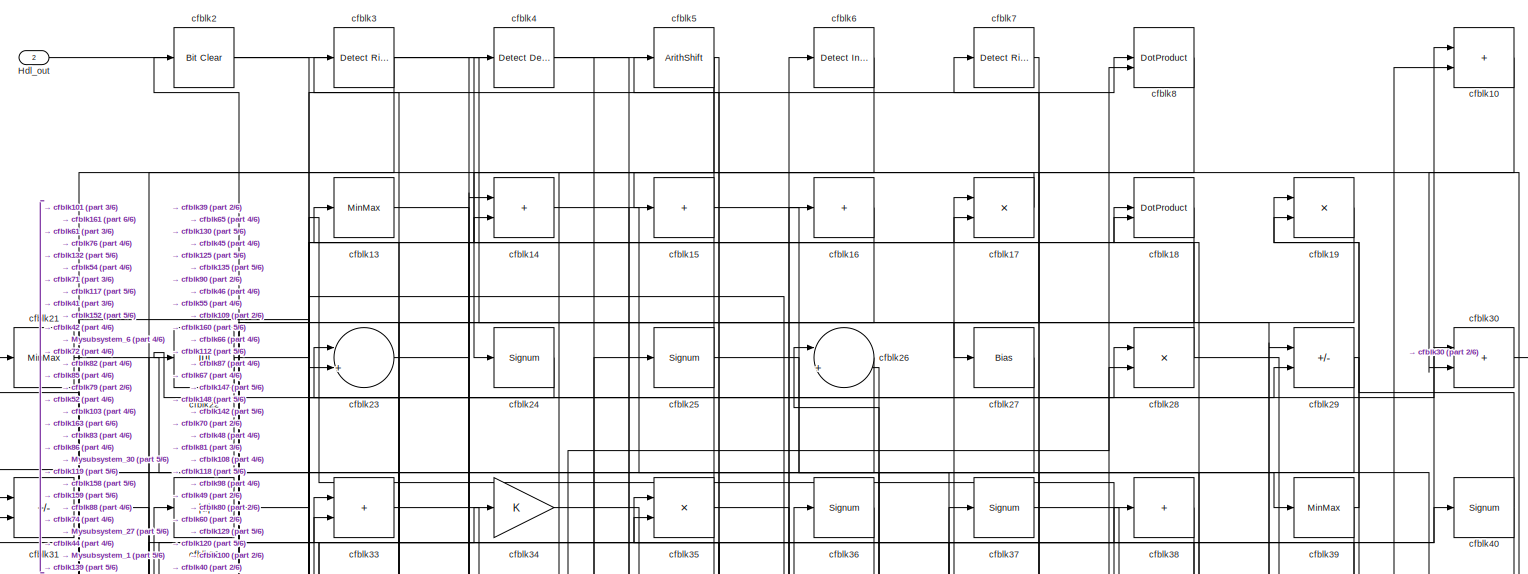
[diagram: root canvas - part 1/6, full width, top band]
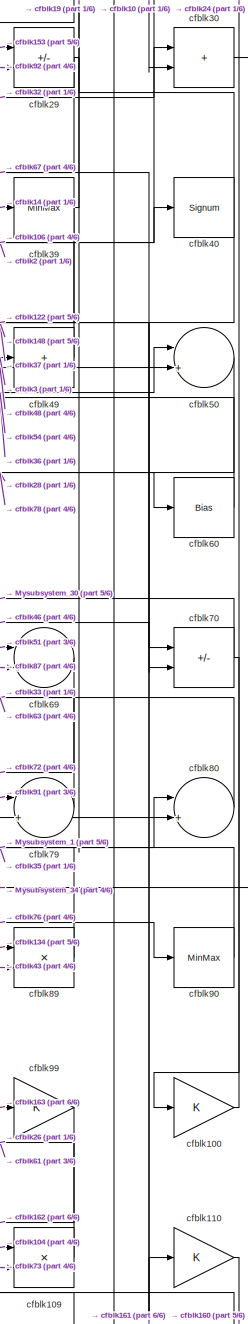
[diagram: root canvas - part 2/6, middle right region]
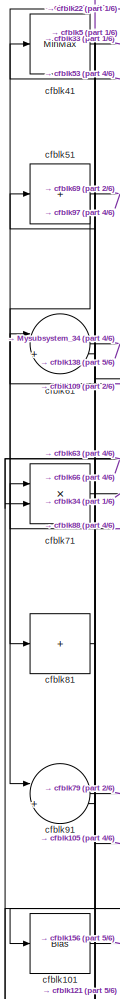
[diagram: root canvas - part 3/6, middle left region]
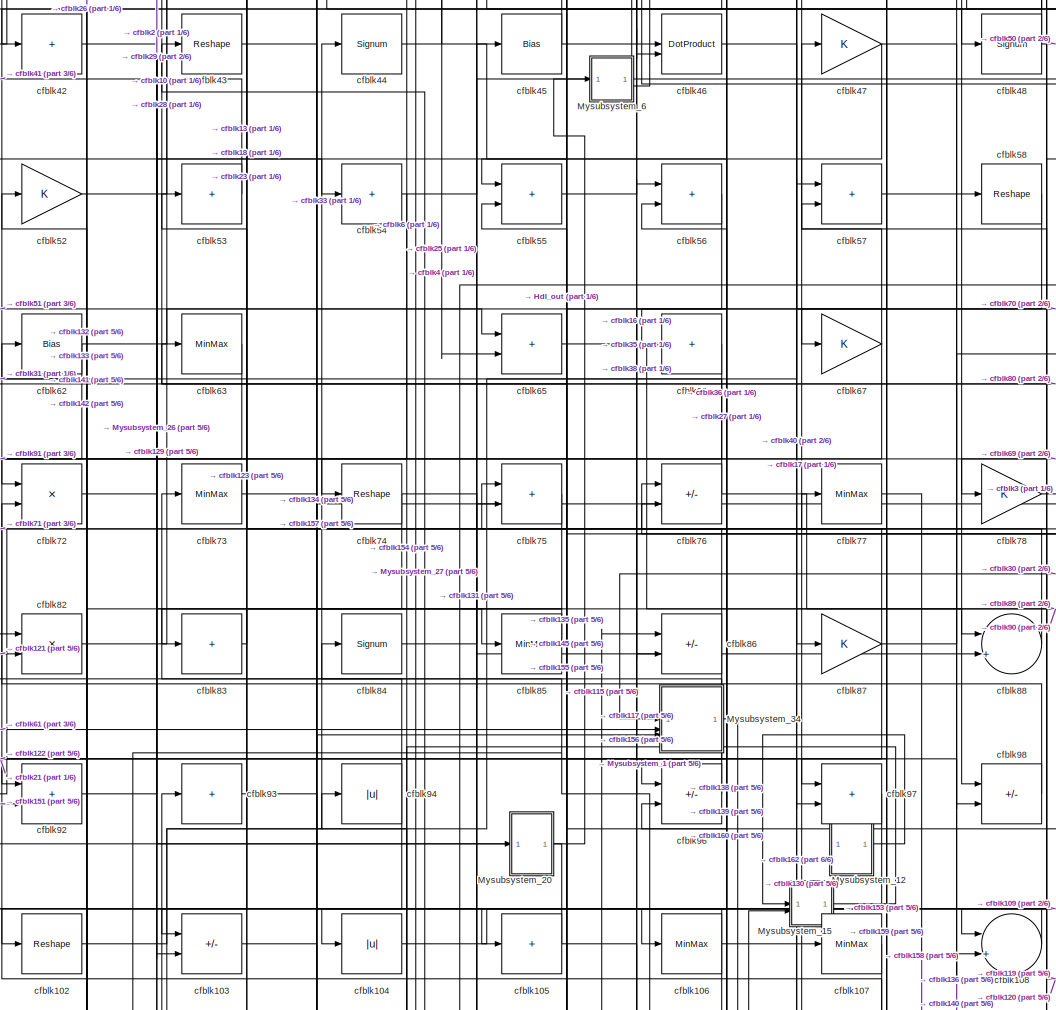
[diagram: root canvas - part 4/6, central region]
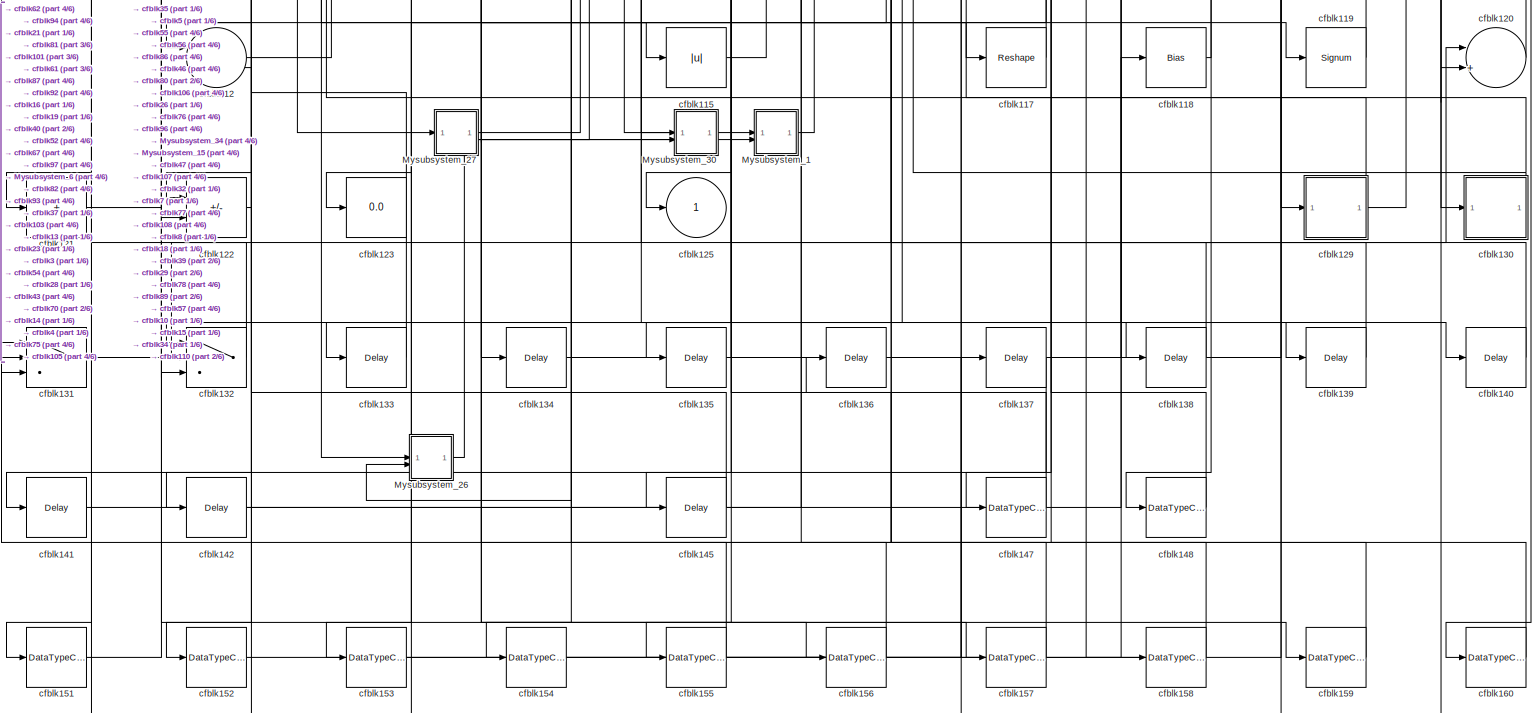
[diagram: root canvas - part 5/6, full width, bottom band]
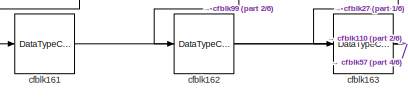
[diagram: root canvas - part 6/6, bottom left region]
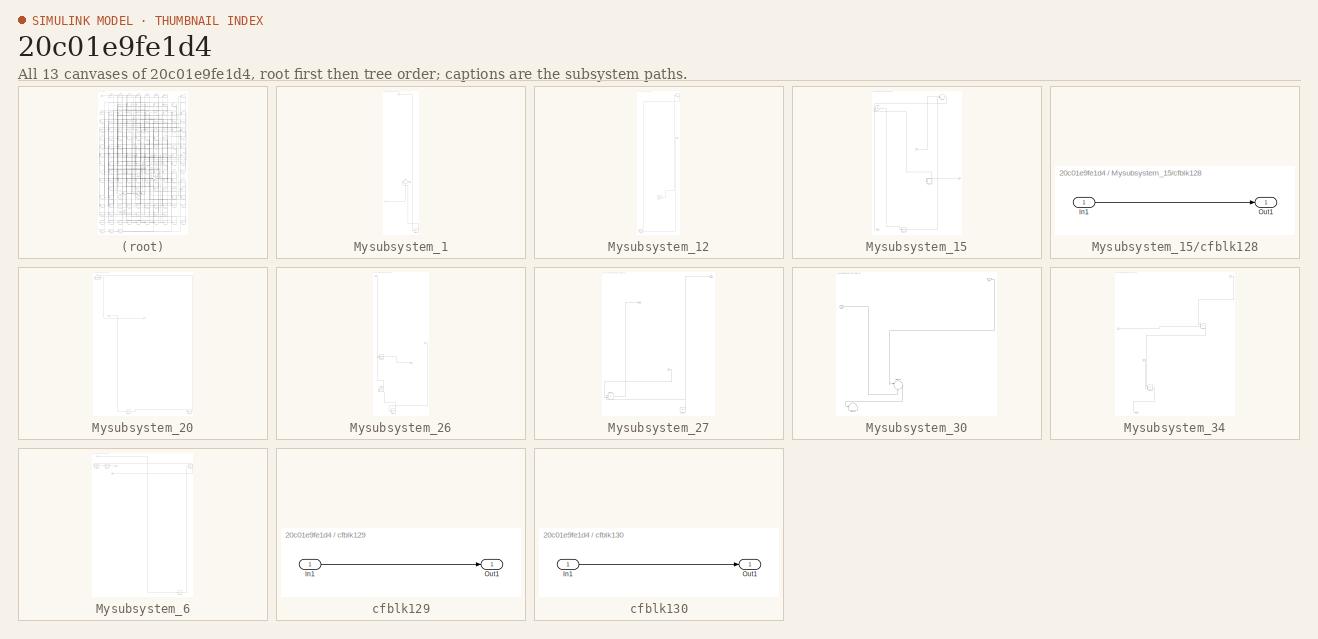
[diagram: thumbnail index - all 13 canvases of the model, root first then tree order]
MODEL slx_20c01e9fe1d4
KIND model
CONFIG AbsTol = auto
CONFIG EnableMultiTasking = off
CONFIG FixedStep = auto
CONFIG MaxStep = auto
CONFIG MinStep = auto
CONFIG RelTol = 1e-3
CONFIG SampleTimeConstraint = Unconstrained
CONFIG SolverName = VariableStepAuto
CONFIG StartTime = 0.0
CONFIG StopTime = 10.0
BLOCK [Outport] Hdl_out
  OutDataTypeStr = uint8
  Port = 2
BLOCK [SubSystem] Mysubsystem_1
  RTWFcnName = Mysubsystem_1
  RTWFcnNameOpts = User specified
  RTWFileNameOpts = Use function name
  RTWSystemCode = Reusable function
  TreatAsAtomicUnit = on
BLOCK [Inport] Mysubsystem_1/In1
BLOCK [Inport] Mysubsystem_1/In2
  Port = 2
BLOCK [Outport] Mysubsystem_1/Out1
BLOCK [Delay] Mysubsystem_1/cfblk146
  InputPortMap = u0
  SampleTime = 1
BLOCK [Sum] Mysubsystem_1/cfblk95
  Inputs = |++
BLOCK [SubSystem] Mysubsystem_12
  RTWFcnName = Mysubsystem_12
  RTWFcnNameOpts = User specified
  RTWFileNameOpts = Use function name
  RTWSystemCode = Reusable function
  TreatAsAtomicUnit = on
BLOCK [Outport] Mysubsystem_12/Out1
BLOCK [Reference] Mysubsystem_12/cfblk127  REF=hdlsllib/Sources/Counter
Free-Running
  SourceBlock = hdlsllib/Sources/Counter\nFree-Running
  SourceType = Counter Free-Running
BLOCK [DataTypeConversion] Mysubsystem_12/cfblk165
  OutDataTypeStr = uint8
  RndMeth = Floor
  SaturateOnIntegerOverflow = off
BLOCK [Abs] Mysubsystem_12/cfblk9
  SaturateOnIntegerOverflow = off
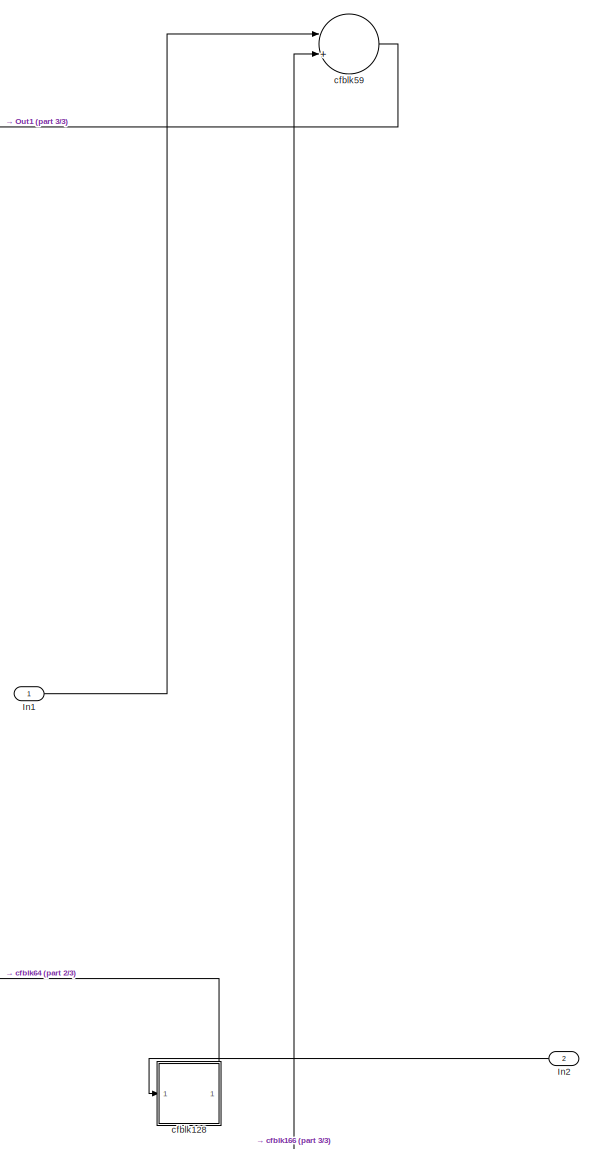
[diagram: Mysubsystem_15 - part 1/3, middle right region]
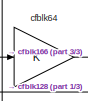
[diagram: Mysubsystem_15 - part 2/3, top left region]
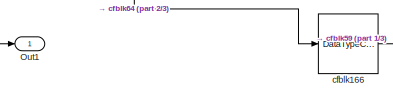
[diagram: Mysubsystem_15 - part 3/3, bottom left region]
BLOCK [SubSystem] Mysubsystem_15
  RTWFcnName = Mysubsystem_15
  RTWFcnNameOpts = User specified
  RTWFileNameOpts = Use function name
  RTWSystemCode = Reusable function
  TreatAsAtomicUnit = on
BLOCK [Inport] Mysubsystem_15/In1
BLOCK [Inport] Mysubsystem_15/In2
  Port = 2
BLOCK [Outport] Mysubsystem_15/Out1
BLOCK [SubSystem] Mysubsystem_15/cfblk128
  LibrarySourceBlock = hdlsllib/Ports &\nSubsystems/Subsystem
BLOCK [Inport] Mysubsystem_15/cfblk128/In1
BLOCK [Outport] Mysubsystem_15/cfblk128/Out1
BLOCK [DataTypeConversion] Mysubsystem_15/cfblk166
  OutDataTypeStr = uint8
  RndMeth = Floor
  SaturateOnIntegerOverflow = off
BLOCK [Sum] Mysubsystem_15/cfblk59
  Inputs = |++
BLOCK [Gain] Mysubsystem_15/cfblk64
BLOCK [SubSystem] Mysubsystem_20
  RTWFcnName = Mysubsystem_20
  RTWFcnNameOpts = User specified
  RTWFileNameOpts = Use function name
  RTWSystemCode = Reusable function
  TreatAsAtomicUnit = on
BLOCK [Inport] Mysubsystem_20/In1
BLOCK [Reference] Mysubsystem_20/cfblk1  REF=hdlsllib/Logic and Bit
Operations/Compare
To Zero
  SourceBlock = hdlsllib/Logic and Bit\nOperations/Compare\nTo Zero
  SourceType = Compare To Zero
BLOCK [Delay] Mysubsystem_20/cfblk144
  InputPortMap = u0
  SampleTime = 1
BLOCK [DataTypeConversion] Mysubsystem_20/cfblk150
  OutDataTypeStr = uint8
  RndMeth = Floor
  SaturateOnIntegerOverflow = off
BLOCK [Outport] Mysubsystem_20/y
BLOCK [SubSystem] Mysubsystem_26
  RTWFcnName = Mysubsystem_26
  RTWFcnNameOpts = User specified
  RTWFileNameOpts = Use function name
  RTWSystemCode = Reusable function
  TreatAsAtomicUnit = on
BLOCK [Inport] Mysubsystem_26/In1
BLOCK [Inport] Mysubsystem_26/In2
  Port = 2
BLOCK [Outport] Mysubsystem_26/Out1
BLOCK [DotProduct] Mysubsystem_26/cfblk113
  OutDataTypeStr = Inherit: Inherit via internal rule
BLOCK [Delay] Mysubsystem_26/cfblk143
  InputPortMap = u0
  SampleTime = 1
BLOCK [DataTypeConversion] Mysubsystem_26/cfblk164
  OutDataTypeStr = uint8
  RndMeth = Floor
  SaturateOnIntegerOverflow = off
BLOCK [SubSystem] Mysubsystem_27
  RTWFcnName = Mysubsystem_27
  RTWFcnNameOpts = User specified
  RTWFileNameOpts = Use function name
  RTWSystemCode = Reusable function
  TreatAsAtomicUnit = on
BLOCK [Inport] Mysubsystem_27/In1
BLOCK [Outport] Mysubsystem_27/Out1
BLOCK [Outport] Mysubsystem_27/Out2
  Port = 2
BLOCK [Product] Mysubsystem_27/cfblk111
  Inputs = */
  RndMeth = Zero
  SaturateOnIntegerOverflow = on
BLOCK [Ground] Mysubsystem_27/cfblk126
BLOCK [SubSystem] Mysubsystem_30
  RTWFcnName = Mysubsystem_30
  RTWFcnNameOpts = User specified
  RTWFileNameOpts = Use function name
  RTWSystemCode = Reusable function
  TreatAsAtomicUnit = on
BLOCK [Inport] Mysubsystem_30/In1
BLOCK [Inport] Mysubsystem_30/In2
  Port = 2
BLOCK [Sum] Mysubsystem_30/cfblk116
  Inputs = |++
BLOCK [Terminator] Mysubsystem_30/cfblk124
BLOCK [SubSystem] Mysubsystem_34
  RTWFcnName = Mysubsystem_34
  RTWFcnNameOpts = User specified
  RTWFileNameOpts = Use function name
  RTWSystemCode = Reusable function
  TreatAsAtomicUnit = on
BLOCK [Inport] Mysubsystem_34/In1
BLOCK [Inport] Mysubsystem_34/In2
  Port = 2
BLOCK [Inport] Mysubsystem_34/In3
  Port = 3
BLOCK [Outport] Mysubsystem_34/Out1
BLOCK [Sum] Mysubsystem_34/cfblk114
  IconShape = rectangular
  Inputs = +-
BLOCK [Sum] Mysubsystem_34/cfblk68
  IconShape = rectangular
  Inputs = +-
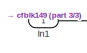
[diagram: Mysubsystem_6 - part 1/3, top left region]
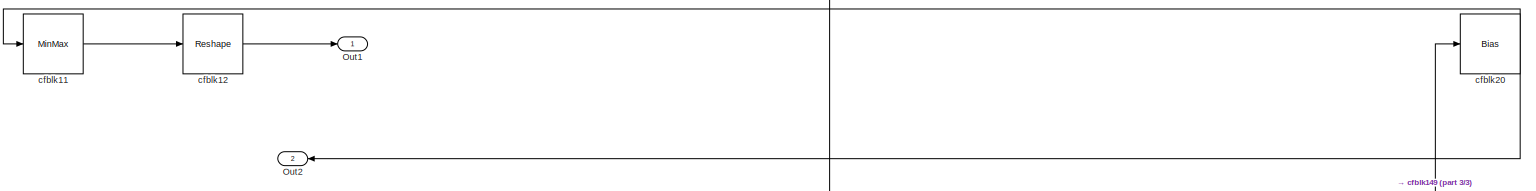
[diagram: Mysubsystem_6 - part 2/3, full width, top band]
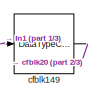
[diagram: Mysubsystem_6 - part 3/3, bottom right region]
BLOCK [SubSystem] Mysubsystem_6
  RTWFcnName = Mysubsystem_6
  RTWFcnNameOpts = User specified
  RTWFileNameOpts = Use function name
  RTWSystemCode = Reusable function
  TreatAsAtomicUnit = on
BLOCK [Inport] Mysubsystem_6/In1
BLOCK [Outport] Mysubsystem_6/Out1
BLOCK [Outport] Mysubsystem_6/Out2
  Port = 2
BLOCK [MinMax] Mysubsystem_6/cfblk11
BLOCK [Reshape] Mysubsystem_6/cfblk12
BLOCK [DataTypeConversion] Mysubsystem_6/cfblk149
  OutDataTypeStr = uint8
  RndMeth = Floor
  SaturateOnIntegerOverflow = off
BLOCK [Bias] Mysubsystem_6/cfblk20
  Bias = 0.0
  SaturateOnIntegerOverflow = off
BLOCK [Sum] cfblk10
  IconShape = rectangular
  OutDataTypeStr = uint8
BLOCK [Gain] cfblk100
  OutDataTypeStr = uint8
BLOCK [Bias] cfblk101
  Bias = 0.0
  SaturateOnIntegerOverflow = off
BLOCK [Reshape] cfblk102
BLOCK [Sum] cfblk103
  IconShape = rectangular
  Inputs = +-
  OutDataTypeStr = uint8
BLOCK [Abs] cfblk104
  OutDataTypeStr = uint8
  SaturateOnIntegerOverflow = off
BLOCK [Sum] cfblk105
  IconShape = rectangular
  Inputs = +
  OutDataTypeStr = uint8
BLOCK [MinMax] cfblk106
  OutDataTypeStr = uint8
BLOCK [MinMax] cfblk107
  OutDataTypeStr = uint8
BLOCK [Sum] cfblk108
  Inputs = |++
  OutDataTypeStr = uint8
BLOCK [Product] cfblk109
  Inputs = */
  OutDataTypeStr = uint8
  RndMeth = Zero
  SaturateOnIntegerOverflow = on
BLOCK [Gain] cfblk110
  OutDataTypeStr = uint8
BLOCK [Sum] cfblk112
  Inputs = |++
  OutDataTypeStr = uint8
BLOCK [Abs] cfblk115
  OutDataTypeStr = uint8
  SaturateOnIntegerOverflow = off
BLOCK [Reshape] cfblk117
BLOCK [Bias] cfblk118
  Bias = 0.0
  SaturateOnIntegerOverflow = off
BLOCK [Signum] cfblk119
BLOCK [Sum] cfblk120
  Inputs = |++
  OutDataTypeStr = uint8
BLOCK [Sum] cfblk121
  IconShape = rectangular
  Inputs = +
  OutDataTypeStr = uint8
BLOCK [Sum] cfblk122
  IconShape = rectangular
  Inputs = +-
  OutDataTypeStr = uint8
BLOCK [Display] cfblk123
  Decimation = 1
BLOCK [Outport] cfblk125
  OutDataTypeStr = uint8
  VectorParamsAs1DForOutWhenUnconnected = off
BLOCK [SubSystem] cfblk129
  LibrarySourceBlock = hdlsllib/Ports &\nSubsystems/Subsystem
BLOCK [Inport] cfblk129/In1
BLOCK [Outport] cfblk129/Out1
BLOCK [MinMax] cfblk13
  OutDataTypeStr = uint8
BLOCK [SubSystem] cfblk130
  LibrarySourceBlock = hdlsllib/Ports &\nSubsystems/Subsystem
BLOCK [Inport] cfblk130/In1
BLOCK [Outport] cfblk130/Out1
BLOCK [Switch] cfblk131
  InputSameDT = off
  OutDataTypeStr = uint8
  SaturateOnIntegerOverflow = off
BLOCK [Switch] cfblk132
  InputSameDT = off
  OutDataTypeStr = uint8
  SaturateOnIntegerOverflow = off
BLOCK [Delay] cfblk133
  InputPortMap = u0
  SampleTime = 1
BLOCK [Delay] cfblk134
  InputPortMap = u0
  SampleTime = 1
BLOCK [Delay] cfblk135
  InputPortMap = u0
  SampleTime = 1
BLOCK [Delay] cfblk136
  InputPortMap = u0
  SampleTime = 1
BLOCK [Delay] cfblk137
  InputPortMap = u0
  SampleTime = 1
BLOCK [Delay] cfblk138
  InputPortMap = u0
  SampleTime = 1
BLOCK [Delay] cfblk139
  InputPortMap = u0
  SampleTime = 1
BLOCK [Sum] cfblk14
  IconShape = rectangular
  OutDataTypeStr = uint8
BLOCK [Delay] cfblk140
  InputPortMap = u0
  SampleTime = 1
BLOCK [Delay] cfblk141
  InputPortMap = u0
  SampleTime = 1
BLOCK [Delay] cfblk142
  InputPortMap = u0
  SampleTime = 1
BLOCK [Delay] cfblk145
  InputPortMap = u0
  SampleTime = 1
BLOCK [DataTypeConversion] cfblk147
  OutDataTypeStr = uint8
  RndMeth = Floor
  SaturateOnIntegerOverflow = off
BLOCK [DataTypeConversion] cfblk148
  OutDataTypeStr = uint8
  RndMeth = Floor
  SaturateOnIntegerOverflow = off
BLOCK [Sum] cfblk15
  IconShape = rectangular
  Inputs = +
  OutDataTypeStr = uint8
BLOCK [DataTypeConversion] cfblk151
  OutDataTypeStr = uint8
  RndMeth = Floor
  SaturateOnIntegerOverflow = off
BLOCK [DataTypeConversion] cfblk152
  OutDataTypeStr = uint8
  RndMeth = Floor
  SaturateOnIntegerOverflow = off
BLOCK [DataTypeConversion] cfblk153
  OutDataTypeStr = uint8
  RndMeth = Floor
  SaturateOnIntegerOverflow = off
BLOCK [DataTypeConversion] cfblk154
  OutDataTypeStr = uint8
  RndMeth = Floor
  SaturateOnIntegerOverflow = off
BLOCK [DataTypeConversion] cfblk155
  OutDataTypeStr = uint8
  RndMeth = Floor
  SaturateOnIntegerOverflow = off
BLOCK [DataTypeConversion] cfblk156
  OutDataTypeStr = uint8
  RndMeth = Floor
  SaturateOnIntegerOverflow = off
BLOCK [DataTypeConversion] cfblk157
  OutDataTypeStr = uint8
  RndMeth = Floor
  SaturateOnIntegerOverflow = off
BLOCK [DataTypeConversion] cfblk158
  OutDataTypeStr = uint8
  RndMeth = Floor
  SaturateOnIntegerOverflow = off
BLOCK [DataTypeConversion] cfblk159
  OutDataTypeStr = uint8
  RndMeth = Floor
  SaturateOnIntegerOverflow = off
BLOCK [Sum] cfblk16
  IconShape = rectangular
  Inputs = +
  OutDataTypeStr = uint8
BLOCK [DataTypeConversion] cfblk160
  OutDataTypeStr = uint8
  RndMeth = Floor
  SaturateOnIntegerOverflow = off
BLOCK [DataTypeConversion] cfblk161
  OutDataTypeStr = uint8
  RndMeth = Floor
  SaturateOnIntegerOverflow = off
BLOCK [DataTypeConversion] cfblk162
  OutDataTypeStr = uint8
  RndMeth = Floor
  SaturateOnIntegerOverflow = off
BLOCK [DataTypeConversion] cfblk163
  OutDataTypeStr = uint8
  RndMeth = Floor
  SaturateOnIntegerOverflow = off
BLOCK [Product] cfblk17
  Inputs = */
  OutDataTypeStr = uint8
  RndMeth = Zero
  SaturateOnIntegerOverflow = on
BLOCK [DotProduct] cfblk18
  OutDataTypeStr = uint8
BLOCK [Product] cfblk19
  Inputs = */
  OutDataTypeStr = uint8
  RndMeth = Zero
  SaturateOnIntegerOverflow = on
BLOCK [Reference] cfblk2  REF=simulink/Logic and Bit
Operations/Bit Clear
  LibrarySourceBlock = hdlsllib/Logic and Bit\nOperations/Bit Clear
  SourceBlock = simulink/Logic and Bit\nOperations/Bit Clear
  SourceType = Bit Clear
BLOCK [MinMax] cfblk21
  OutDataTypeStr = uint8
BLOCK [Abs] cfblk22
  OutDataTypeStr = uint8
  SaturateOnIntegerOverflow = off
BLOCK [Sum] cfblk23
  Inputs = |++
  OutDataTypeStr = uint8
BLOCK [Signum] cfblk24
BLOCK [Signum] cfblk25
BLOCK [Sum] cfblk26
  Inputs = |++
  OutDataTypeStr = uint8
BLOCK [Bias] cfblk27
  Bias = 0.0
  SaturateOnIntegerOverflow = off
BLOCK [Product] cfblk28
  Inputs = */
  OutDataTypeStr = uint8
  RndMeth = Zero
  SaturateOnIntegerOverflow = on
BLOCK [Sum] cfblk29
  IconShape = rectangular
  Inputs = +-
  OutDataTypeStr = uint8
BLOCK [Reference] cfblk3  REF=hdlsllib/Logic and Bit
Operations/Detect Rise
Positive
  SourceBlock = hdlsllib/Logic and Bit\nOperations/Detect Rise\nPositive
  SourceType = Detect Rise Positive
BLOCK [Sum] cfblk30
  IconShape = rectangular
  OutDataTypeStr = uint8
BLOCK [Sum] cfblk31
  IconShape = rectangular
  Inputs = +-
  OutDataTypeStr = uint8
BLOCK [Abs] cfblk32
  OutDataTypeStr = uint8
  SaturateOnIntegerOverflow = off
BLOCK [Sum] cfblk33
  IconShape = rectangular
  OutDataTypeStr = uint8
BLOCK [Gain] cfblk34
  OutDataTypeStr = uint8
BLOCK [Product] cfblk35
  Inputs = */
  OutDataTypeStr = uint8
  RndMeth = Zero
  SaturateOnIntegerOverflow = on
BLOCK [Signum] cfblk36
BLOCK [Signum] cfblk37
BLOCK [Sum] cfblk38
  IconShape = rectangular
  Inputs = +
  OutDataTypeStr = uint8
BLOCK [MinMax] cfblk39
  OutDataTypeStr = uint8
BLOCK [Reference] cfblk4  REF=simulink/Logic and Bit
Operations/Detect
Decrease
  LibrarySourceBlock = hdlsllib/Logic and Bit\nOperations/Detect\nDecrease
  SourceBlock = simulink/Logic and Bit\nOperations/Detect\nDecrease
  SourceType = Detect Decrease
BLOCK [Signum] cfblk40
BLOCK [MinMax] cfblk41
  OutDataTypeStr = uint8
BLOCK [Sum] cfblk42
  IconShape = rectangular
  Inputs = +
  OutDataTypeStr = uint8
BLOCK [Reshape] cfblk43
BLOCK [Signum] cfblk44
BLOCK [Bias] cfblk45
  Bias = 0.0
  SaturateOnIntegerOverflow = off
BLOCK [DotProduct] cfblk46
  OutDataTypeStr = uint8
BLOCK [Gain] cfblk47
  OutDataTypeStr = uint8
BLOCK [Signum] cfblk48
BLOCK [Sum] cfblk49
  IconShape = rectangular
  Inputs = +
  OutDataTypeStr = uint8
BLOCK [ArithShift] cfblk5
  BitShiftNumber = 8
  InputPortMap = u0
BLOCK [Sum] cfblk50
  Inputs = |++
  OutDataTypeStr = uint8
BLOCK [Sum] cfblk51
  IconShape = rectangular
  Inputs = +
  OutDataTypeStr = uint8
BLOCK [Gain] cfblk52
  OutDataTypeStr = uint8
BLOCK [Sum] cfblk53
  IconShape = rectangular
  Inputs = +
  OutDataTypeStr = uint8
BLOCK [Sum] cfblk54
  IconShape = rectangular
  Inputs = +
  OutDataTypeStr = uint8
BLOCK [Sum] cfblk55
  IconShape = rectangular
  OutDataTypeStr = uint8
BLOCK [Sum] cfblk56
  IconShape = rectangular
  OutDataTypeStr = uint8
BLOCK [Sum] cfblk57
  IconShape = rectangular
  OutDataTypeStr = uint8
BLOCK [Reshape] cfblk58
BLOCK [Reference] cfblk6  REF=simulink/Logic and Bit
Operations/Detect
Increase
  LibrarySourceBlock = hdlsllib/Logic and Bit\nOperations/Detect\nIncrease
  SourceBlock = simulink/Logic and Bit\nOperations/Detect\nIncrease
  SourceType = Detect Increase
BLOCK [Bias] cfblk60
  Bias = 0.0
  SaturateOnIntegerOverflow = off
BLOCK [Sum] cfblk61
  Inputs = |++
  OutDataTypeStr = uint8
BLOCK [Bias] cfblk62
  Bias = 0.0
  SaturateOnIntegerOverflow = off
BLOCK [MinMax] cfblk63
  OutDataTypeStr = uint8
BLOCK [Sum] cfblk65
  IconShape = rectangular
  OutDataTypeStr = uint8
BLOCK [Sum] cfblk66
  IconShape = rectangular
  Inputs = +
  OutDataTypeStr = uint8
BLOCK [Gain] cfblk67
  OutDataTypeStr = uint8
BLOCK [Sum] cfblk69
  Inputs = |++
  OutDataTypeStr = uint8
BLOCK [Reference] cfblk7  REF=hdlsllib/Logic and Bit
Operations/Detect Rise
Positive
  SourceBlock = hdlsllib/Logic and Bit\nOperations/Detect Rise\nPositive
  SourceType = Detect Rise Positive
BLOCK [Sum] cfblk70
  IconShape = rectangular
  Inputs = +-
  OutDataTypeStr = uint8
BLOCK [Product] cfblk71
  Inputs = */
  OutDataTypeStr = uint8
  RndMeth = Zero
  SaturateOnIntegerOverflow = on
BLOCK [Product] cfblk72
  Inputs = */
  OutDataTypeStr = uint8
  RndMeth = Zero
  SaturateOnIntegerOverflow = on
BLOCK [MinMax] cfblk73
  OutDataTypeStr = uint8
BLOCK [Reshape] cfblk74
BLOCK [Sum] cfblk75
  IconShape = rectangular
  OutDataTypeStr = uint8
BLOCK [Sum] cfblk76
  IconShape = rectangular
  Inputs = +-
  OutDataTypeStr = uint8
BLOCK [MinMax] cfblk77
  OutDataTypeStr = uint8
BLOCK [Gain] cfblk78
  OutDataTypeStr = uint8
BLOCK [Sum] cfblk79
  Inputs = |++
  OutDataTypeStr = uint8
BLOCK [DotProduct] cfblk8
  OutDataTypeStr = uint8
BLOCK [Sum] cfblk80
  Inputs = |++
  OutDataTypeStr = uint8
BLOCK [Sum] cfblk81
  IconShape = rectangular
  Inputs = +
  OutDataTypeStr = uint8
BLOCK [Product] cfblk82
  Inputs = */
  OutDataTypeStr = uint8
  RndMeth = Zero
  SaturateOnIntegerOverflow = on
BLOCK [Sum] cfblk83
  IconShape = rectangular
  Inputs = +
  OutDataTypeStr = uint8
BLOCK [Signum] cfblk84
BLOCK [MinMax] cfblk85
  OutDataTypeStr = uint8
BLOCK [Sum] cfblk86
  IconShape = rectangular
  Inputs = +-
  OutDataTypeStr = uint8
BLOCK [Gain] cfblk87
  OutDataTypeStr = uint8
BLOCK [Sum] cfblk88
  Inputs = |++
  OutDataTypeStr = uint8
BLOCK [Product] cfblk89
  Inputs = */
  OutDataTypeStr = uint8
  RndMeth = Zero
  SaturateOnIntegerOverflow = on
BLOCK [MinMax] cfblk90
  OutDataTypeStr = uint8
BLOCK [Sum] cfblk91
  Inputs = |++
  OutDataTypeStr = uint8
BLOCK [Sum] cfblk92
  IconShape = rectangular
  OutDataTypeStr = uint8
BLOCK [Sum] cfblk93
  IconShape = rectangular
  Inputs = +
  OutDataTypeStr = uint8
BLOCK [Abs] cfblk94
  OutDataTypeStr = uint8
  SaturateOnIntegerOverflow = off
BLOCK [Sum] cfblk96
  IconShape = rectangular
  Inputs = +-
  OutDataTypeStr = uint8
BLOCK [Sum] cfblk97
  IconShape = rectangular
  OutDataTypeStr = uint8
BLOCK [Sum] cfblk98
  IconShape = rectangular
  Inputs = +-
  OutDataTypeStr = uint8
BLOCK [Gain] cfblk99
  OutDataTypeStr = uint8
LINE Mysubsystem_1/In1:1 -> Mysubsystem_1/cfblk146:1
LINE Mysubsystem_1/In2:1 -> Mysubsystem_1/cfblk95:2
LINE Mysubsystem_1/cfblk146:1 -> Mysubsystem_1/cfblk95:1
LINE Mysubsystem_1/cfblk95:1 -> Mysubsystem_1/Out1:1
LINE Mysubsystem_12/cfblk127:1 -> Mysubsystem_12/cfblk9:1
LINE Mysubsystem_12/cfblk165:1 -> Mysubsystem_12/Out1:1
LINE Mysubsystem_12/cfblk9:1 -> Mysubsystem_12/cfblk165:1
LINE Mysubsystem_12:1 -> Mysubsystem_15:1
LINE Mysubsystem_15/In1:1 -> Mysubsystem_15/cfblk59:1
LINE Mysubsystem_15/In2:1 -> Mysubsystem_15/cfblk128:1
LINE Mysubsystem_15/cfblk128/In1:1 -> Mysubsystem_15/cfblk128/Out1:1
LINE Mysubsystem_15/cfblk128:1 -> Mysubsystem_15/cfblk64:1
LINE Mysubsystem_15/cfblk166:1 -> Mysubsystem_15/cfblk59:2
LINE Mysubsystem_15/cfblk59:1 -> Mysubsystem_15/Out1:1
LINE Mysubsystem_15/cfblk64:1 -> Mysubsystem_15/cfblk166:1
LINE Mysubsystem_15:1 -> Mysubsystem_26:2
NET Mysubsystem_1:1 -> Mysubsystem_27:1, cfblk62:1, cfblk80:1
LINE Mysubsystem_20/In1:1 -> Mysubsystem_20/cfblk144:1
LINE Mysubsystem_20/cfblk144:1 -> Mysubsystem_20/cfblk150:1
LINE Mysubsystem_20/cfblk150:1 -> Mysubsystem_20/cfblk1:1
LINE Mysubsystem_20/cfblk1:1 -> Mysubsystem_20/y:1
LINE Mysubsystem_20:1 -> Mysubsystem_6:1
LINE Mysubsystem_26/In1:1 -> Mysubsystem_26/cfblk113:2
LINE Mysubsystem_26/In2:1 -> Mysubsystem_26/cfblk164:1
LINE Mysubsystem_26/cfblk113:1 -> Mysubsystem_26/Out1:1
LINE Mysubsystem_26/cfblk143:1 -> Mysubsystem_26/cfblk113:1
LINE Mysubsystem_26/cfblk164:1 -> Mysubsystem_26/cfblk143:1
LINE Mysubsystem_26:1 -> Mysubsystem_1:2
LINE Mysubsystem_27/In1:1 -> Mysubsystem_27/cfblk111:2
LINE Mysubsystem_27/cfblk111:1 -> Mysubsystem_27/Out2:1
NET Mysubsystem_27/cfblk126:1 -> Mysubsystem_27/Out1:1, Mysubsystem_27/cfblk111:1
LINE Mysubsystem_27:1 -> cfblk28:2
LINE Mysubsystem_27:2 -> cfblk43:1
LINE Mysubsystem_30/In1:1 -> Mysubsystem_30/cfblk116:1
LINE Mysubsystem_30/In2:1 -> Mysubsystem_30/cfblk116:2
LINE Mysubsystem_30/cfblk116:1 -> Mysubsystem_30/cfblk124:1
LINE Mysubsystem_34/In1:1 -> Mysubsystem_34/cfblk68:1
LINE Mysubsystem_34/In2:1 -> Mysubsystem_34/cfblk68:2
LINE Mysubsystem_34/In3:1 -> Mysubsystem_34/cfblk114:2
LINE Mysubsystem_34/cfblk114:1 -> Mysubsystem_34/Out1:1
LINE Mysubsystem_34/cfblk68:1 -> Mysubsystem_34/cfblk114:1
LINE Mysubsystem_34:1 -> cfblk133:1
LINE Mysubsystem_6/In1:1 -> Mysubsystem_6/cfblk149:1
LINE Mysubsystem_6/cfblk11:1 -> Mysubsystem_6/cfblk12:1
LINE Mysubsystem_6/cfblk12:1 -> Mysubsystem_6/Out1:1
LINE Mysubsystem_6/cfblk149:1 -> Mysubsystem_6/cfblk20:1
NET Mysubsystem_6/cfblk20:1 -> Mysubsystem_6/Out2:1, Mysubsystem_6/cfblk11:1
NET Mysubsystem_6:1 -> cfblk23:2, cfblk48:1
NET Mysubsystem_6:2 -> Mysubsystem_26:1, cfblk31:1
LINE cfblk100:1 -> cfblk24:1
LINE cfblk101:1 -> cfblk156:1
LINE cfblk102:1 -> cfblk84:1
LINE cfblk103:1 -> cfblk134:1
LINE cfblk104:1 -> cfblk109:1
NET cfblk105:1 -> cfblk117:1, cfblk145:1, cfblk51:1
NET cfblk106:1 -> cfblk104:1, cfblk132:2, cfblk40:1
LINE cfblk107:1 -> cfblk153:1
LINE cfblk108:1 -> cfblk102:1
NET cfblk109:1 -> cfblk26:2, cfblk61:1
LINE cfblk10:1 -> cfblk30:2
LINE cfblk110:1 -> cfblk160:1
LINE cfblk112:1 -> cfblk37:1
LINE cfblk115:1 -> cfblk86:1
LINE cfblk117:1 -> cfblk32:1
LINE cfblk118:1 -> cfblk18:1
LINE cfblk119:1 -> cfblk57:2
LINE cfblk120:1 -> cfblk75:1
LINE cfblk121:1 -> cfblk82:2
LINE cfblk122:1 -> cfblk52:1
LINE cfblk129/In1:1 -> cfblk129/Out1:1
NET cfblk129:1 -> cfblk10:2, cfblk93:1
LINE cfblk130/In1:1 -> cfblk130/Out1:1
NET cfblk130:1 -> Mysubsystem_15:2, cfblk47:1
NET cfblk131:1 -> cfblk120:1, cfblk75:2
LINE cfblk132:1 -> cfblk21:1
LINE cfblk133:1 -> cfblk82:1
LINE cfblk134:1 -> cfblk89:1
LINE cfblk135:1 -> cfblk35:2
LINE cfblk136:1 -> cfblk108:2
LINE cfblk137:1 -> cfblk151:1
LINE cfblk138:1 -> cfblk76:2
LINE cfblk139:1 -> cfblk96:2
LINE cfblk13:1 -> cfblk159:1
LINE cfblk140:1 -> cfblk55:2
LINE cfblk141:1 -> cfblk46:1
LINE cfblk142:1 -> cfblk8:2
LINE cfblk145:1 -> cfblk112:2
LINE cfblk147:1 -> cfblk5:1
LINE cfblk148:1 -> cfblk7:1
NET cfblk14:1 -> cfblk139:1, cfblk39:1
LINE cfblk151:1 -> cfblk92:2
LINE cfblk152:1 -> cfblk137:1
LINE cfblk153:1 -> cfblk29:1
LINE cfblk154:1 -> cfblk107:1
NET cfblk155:1 -> cfblk118:1, cfblk131:1
LINE cfblk156:1 -> cfblk56:1
LINE cfblk157:1 -> cfblk56:2
NET cfblk158:1 -> cfblk136:1, cfblk14:1
LINE cfblk159:1 -> cfblk77:1
LINE cfblk15:1 -> cfblk120:2
NET cfblk160:1 -> cfblk26:1, cfblk94:1
LINE cfblk161:1 -> cfblk110:1
LINE cfblk162:1 -> cfblk57:1
LINE cfblk163:1 -> cfblk99:1
LINE cfblk16:1 -> cfblk112:1
LINE cfblk17:1 -> cfblk15:1
LINE cfblk18:1 -> cfblk103:1
LINE cfblk19:1 -> cfblk152:1
NET cfblk21:1 -> cfblk108:1, cfblk98:2
NET cfblk22:1 -> cfblk101:1, cfblk8:1
NET cfblk23:1 -> cfblk119:1, cfblk18:2
LINE cfblk24:1 -> cfblk22:1
LINE cfblk25:1 -> cfblk87:1
LINE cfblk26:1 -> cfblk42:1
NET cfblk27:1 -> cfblk161:1, cfblk163:1, cfblk66:1
NET cfblk28:1 -> cfblk4:1, cfblk60:1
NET cfblk29:1 -> cfblk67:1, cfblk79:2
LINE cfblk2:1 -> cfblk85:1
LINE cfblk30:1 -> Mysubsystem_34:1
LINE cfblk31:1 -> cfblk54:1
NET cfblk32:1 -> cfblk14:2, cfblk30:1
LINE cfblk33:1 -> cfblk88:1
LINE cfblk34:1 -> cfblk130:1
LINE cfblk35:1 -> cfblk46:2
LINE cfblk36:1 -> cfblk55:1
LINE cfblk37:1 -> cfblk70:1
LINE cfblk38:1 -> cfblk81:1
NET cfblk39:1 -> cfblk148:1, cfblk19:1
NET cfblk3:1 -> Mysubsystem_30:2, cfblk132:3, cfblk49:1, cfblk80:2
NET cfblk40:1 -> cfblk122:1, cfblk19:2
LINE cfblk41:1 -> cfblk33:2
LINE cfblk42:1 -> Mysubsystem_20:1
LINE cfblk43:1 -> cfblk89:2
NET cfblk44:1 -> cfblk106:1, cfblk25:1
NET cfblk45:1 -> Hdl_out:1, cfblk38:1
NET cfblk46:1 -> cfblk70:2, cfblk96:1
NET cfblk47:1 -> cfblk103:2, cfblk140:1, cfblk97:1
NET cfblk48:1 -> cfblk3:1, cfblk50:2
LINE cfblk49:1 -> cfblk2:1
NET cfblk4:1 -> Mysubsystem_1:1, cfblk65:2
LINE cfblk50:1 -> cfblk78:1
NET cfblk51:1 -> cfblk69:1, cfblk91:1, cfblk97:2
LINE cfblk52:1 -> cfblk6:1
LINE cfblk53:1 -> cfblk41:1
NET cfblk54:1 -> cfblk154:1, cfblk50:1
LINE cfblk55:1 -> cfblk16:1
LINE cfblk56:1 -> cfblk155:1
LINE cfblk57:1 -> cfblk58:1
LINE cfblk58:1 -> cfblk86:2
NET cfblk5:1 -> cfblk125:1, cfblk61:2
LINE cfblk60:1 -> cfblk36:1
NET cfblk61:1 -> Mysubsystem_34:2, cfblk138:1
NET cfblk62:1 -> cfblk131:2, cfblk65:1
LINE cfblk63:1 -> cfblk91:2
LINE cfblk65:1 -> cfblk98:1
LINE cfblk66:1 -> cfblk71:2
NET cfblk67:1 -> cfblk132:1, cfblk17:1
LINE cfblk69:1 -> cfblk72:1
LINE cfblk6:1 -> cfblk74:1
NET cfblk70:1 -> Mysubsystem_30:1, cfblk100:1
LINE cfblk71:1 -> cfblk34:1
LINE cfblk72:1 -> cfblk17:2
NET cfblk73:1 -> cfblk105:1, cfblk109:2
NET cfblk74:1 -> cfblk88:2, cfblk92:1
LINE cfblk75:1 -> cfblk123:1
NET cfblk76:1 -> cfblk31:2, cfblk90:1
LINE cfblk77:1 -> cfblk158:1
LINE cfblk78:1 -> cfblk129:1
LINE cfblk79:1 -> cfblk33:1
LINE cfblk7:1 -> cfblk147:1
LINE cfblk80:1 -> cfblk63:1
LINE cfblk81:1 -> cfblk121:1
NET cfblk82:1 -> cfblk10:1, cfblk115:1, cfblk28:1
LINE cfblk83:1 -> cfblk23:1
LINE cfblk84:1 -> cfblk45:1
LINE cfblk85:1 -> cfblk83:1
NET cfblk86:1 -> cfblk135:1, cfblk13:1
NET cfblk87:1 -> Mysubsystem_34:3, cfblk122:2, cfblk53:1, cfblk69:2
LINE cfblk88:1 -> cfblk71:1
LINE cfblk89:1 -> cfblk76:1
LINE cfblk8:1 -> cfblk27:1
LINE cfblk90:1 -> cfblk35:1
LINE cfblk91:1 -> cfblk79:1
LINE cfblk92:1 -> cfblk29:2
LINE cfblk93:1 -> cfblk157:1
NET cfblk94:1 -> cfblk131:3, cfblk73:1
LINE cfblk96:1 -> cfblk44:1
NET cfblk97:1 -> cfblk141:1, cfblk142:1
LINE cfblk98:1 -> cfblk72:2
LINE cfblk99:1 -> cfblk162:1
note: NET lines group one-source signal fan-out (src -> all destinations, sorted); 1:1 wires keep LINE
